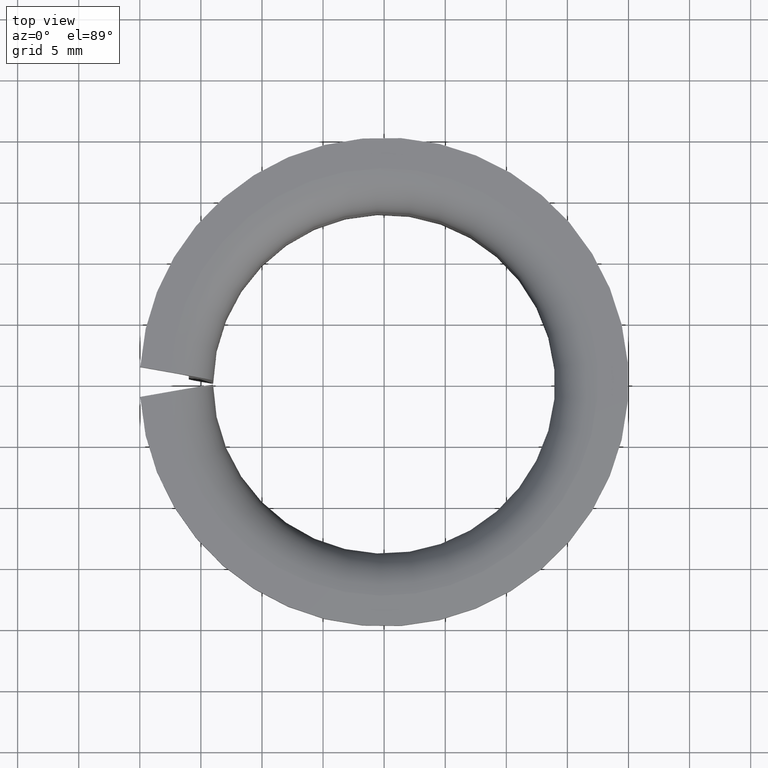
[diagram: clean part render]
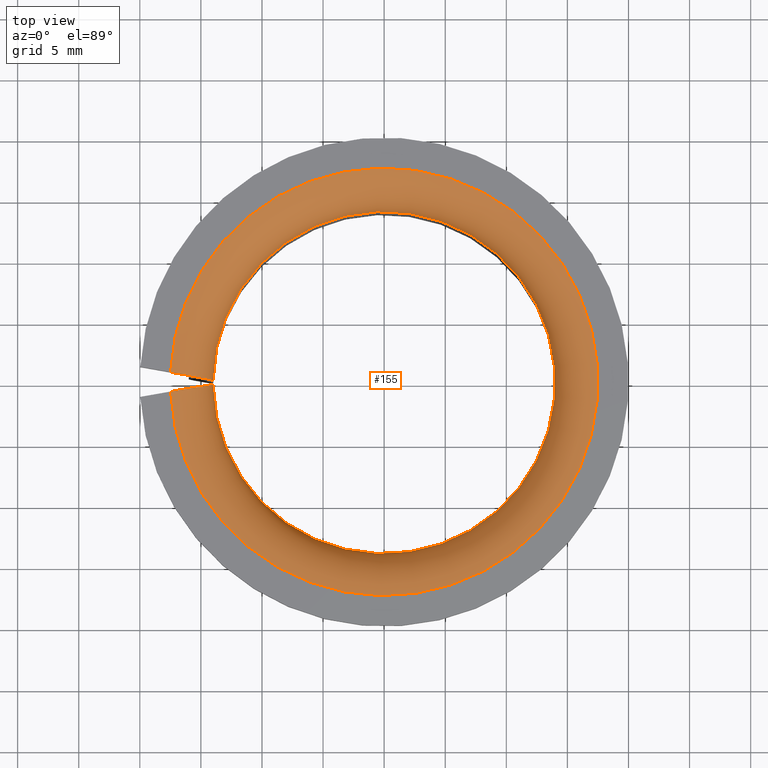
[diagram: same view with one face highlighted and labeled with its STEP entity id]
A machine part, top view. The second image highlights one B-rep face of the part: STEP entity #155.
In plain terms, the highlighted toroidal blend (fillet) surface has major radius 17.5 mm and minor (blend) radius 3.5 mm.
Its self-contained STEP definition (entity closure, byte-faithful):
#155=ADVANCED_FACE('',(#171),#172,.T.);
#171=FACE_OUTER_BOUND('',#196,.T.);
#172=TOROIDAL_SURFACE('',#197,0.0175,0.0035);
#196=EDGE_LOOP('',(#236,#237,#238,#239));
#197=AXIS2_PLACEMENT_3D('',#240,#241,#242);
#236=ORIENTED_EDGE('',*,*,#325,.T.);
#237=ORIENTED_EDGE('',*,*,#326,.T.);
#238=ORIENTED_EDGE('',*,*,#327,.F.);
#239=ORIENTED_EDGE('',*,*,#312,.F.);
#240=CARTESIAN_POINT('',(0.0,0.0,0.0165));
#241=DIRECTION('',(0.0,-6.12323399573677E-017,-1.0));
#242=DIRECTION('',(0.0,1.0,-6.12323399573677E-017));
#312=EDGE_CURVE('',#342,#343,#344,.T.);
#325=EDGE_CURVE('',#342,#367,#368,.T.);
#326=EDGE_CURVE('',#367,#369,#370,.T.);
#327=EDGE_CURVE('',#343,#369,#371,.T.);
#342=VERTEX_POINT('',#392);
#343=VERTEX_POINT('',#393);
#344=B_SPLINE_CURVE_WITH_KNOTS('',3,(#394,#395,#396,#397,#398,#399,#400,#401,#402,#403,#404,#405,#406,#407,#408,#409,#410,#411),.UNSPECIFIED.,.F.,.F.,(4,2,2,2,2,2,2,2,4),(1.97144253782621E-007,0.000687155971088123,0.00137411479792246,0.0020610736247568,0.00274803245159114,0.00343499127842548,0.00412195010525983,0.00480890893209417,0.00549586775892852),.UNSPECIFIED.);
#367=VERTEX_POINT('',#462);
#368=CIRCLE('',#463,0.014);
#369=VERTEX_POINT('',#464);
#370=B_SPLINE_CURVE_WITH_KNOTS('',3,(#465,#466,#467,#468,#469,#470,#471,#472,#473,#474,#475,#476,#477,#478,#479,#480,#481,#482),.UNSPECIFIED.,.F.,.F.,(4,2,2,2,2,2,2,2,4),(1.97144253782621E-007,0.000687155971088123,0.00137411479792246,0.0020610736247568,0.00274803245159114,0.00343499127842548,0.00412195010525983,0.00480890893209417,0.00549586775892852),.UNSPECIFIED.);
#371=CIRCLE('',#483,0.0175);
#392=CARTESIAN_POINT('',(0.0139988920152584,-0.000176131613104306,0.0165));
#393=CARTESIAN_POINT('',(0.0174821448752821,-0.000790323072956412,0.02));
#394=CARTESIAN_POINT('',(0.0139988920152584,-0.000176131613104308,0.0165));
#395=CARTESIAN_POINT('',(0.0139988920152584,-0.000176131613104308,0.0167323021229232));
#396=CARTESIAN_POINT('',(0.0140217423370338,-0.000180160741351178,0.0169606413292185));
#397=CARTESIAN_POINT('',(0.0141111917601118,-0.000195933088048641,0.017409732419077));
#398=CARTESIAN_POINT('',(0.0141789232572242,-0.000207875978433341,0.0176328632184782));
#399=CARTESIAN_POINT('',(0.0143551748077873,-0.000238953882189313,0.0180573672440297));
#400=CARTESIAN_POINT('',(0.0144629322688952,-0.000257954429955282,0.0182585752925512));
#401=CARTESIAN_POINT('',(0.0147172474946042,-0.000302797065852737,0.0186391639638387));
#402=CARTESIAN_POINT('',(0.0148648084549154,-0.000328816044454846,0.0188187890314946));
#403=CARTESIAN_POINT('',(0.0151865801197621,-0.000385553070594809,0.0191405654408067));
#404=CARTESIAN_POINT('',(0.0153620345842795,-0.000416490426574973,0.0192849476132461));
#405=CARTESIAN_POINT('',(0.0157427866059231,-0.000483627280950031,0.0195399002011343));
#406=CARTESIAN_POINT('',(0.0159441840191777,-0.000519139078751712,0.0196475604588357));
#407=CARTESIAN_POINT('',(0.0163615882208697,-0.000592738701371102,0.0198211212195205));
#408=CARTESIAN_POINT('',(0.0165802817788546,-0.000631300276150967,0.019888015713786));
#409=CARTESIAN_POINT('',(0.0170274946156106,-0.000710155965390212,0.0199775150904786));
#410=CARTESIAN_POINT('',(0.0172535720314199,-0.000750019513526241,0.02));
#411=CARTESIAN_POINT('',(0.0174821448752821,-0.000790323072956413,0.02));
#462=CARTESIAN_POINT('',(0.0139988920152584,0.000176131613104309,0.0165));
#463=AXIS2_PLACEMENT_3D('',#538,#539,#540);
#464=CARTESIAN_POINT('',(0.0174821448752821,0.000790323072956419,0.02));
#465=CARTESIAN_POINT('',(0.0139988920152584,0.000176131613104311,0.0165));
#466=CARTESIAN_POINT('',(0.0139988920152584,0.000176131613104311,0.0167323021229232));
#467=CARTESIAN_POINT('',(0.0140217423370338,0.000180160741351181,0.0169606413292185));
#468=CARTESIAN_POINT('',(0.0141111917601118,0.000195933088048644,0.017409732419077));
#469=CARTESIAN_POINT('',(0.0141789232572242,0.000207875978433343,0.0176328632184782));
#470=CARTESIAN_POINT('',(0.0143551748077873,0.000238953882189316,0.0180573672440297));
#471=CARTESIAN_POINT('',(0.0144629322688952,0.000257954429955285,0.0182585752925512));
#472=CARTESIAN_POINT('',(0.0147172474946042,0.00030279706585274,0.0186391639638387));
#473=CARTESIAN_POINT('',(0.0148648084549154,0.000328816044454848,0.0188187890314946));
#474=CARTESIAN_POINT('',(0.0151865801197621,0.000385553070594812,0.0191405654408067));
#475=CARTESIAN_POINT('',(0.0153620345842795,0.000416490426574977,0.0192849476132461));
#476=CARTESIAN_POINT('',(0.0157427866059231,0.000483627280950035,0.0195399002011343));
#477=CARTESIAN_POINT('',(0.0159441840191777,0.000519139078751716,0.0196475604588357));
#478=CARTESIAN_POINT('',(0.0163615882208697,0.000592738701371106,0.0198211212195205));
#479=CARTESIAN_POINT('',(0.0165802817788546,0.000631300276150971,0.019888015713786));
#480=CARTESIAN_POINT('',(0.0170274946156106,0.000710155965390215,0.0199775150904786));
#481=CARTESIAN_POINT('',(0.0172535720314199,0.000750019513526244,0.02));
#482=CARTESIAN_POINT('',(0.0174821448752821,0.000790323072956417,0.02));
#483=AXIS2_PLACEMENT_3D('',#541,#542,#543);
#538=CARTESIAN_POINT('',(0.0,0.0,0.0165));
#539=DIRECTION('',(0.0,-6.12323399573677E-017,-1.0));
#540=DIRECTION('',(0.0,1.0,-6.12323399573677E-017));
#541=CARTESIAN_POINT('',(0.0,0.0,0.02));
#542=DIRECTION('',(0.0,-6.12323399573677E-017,-1.0));
#543=DIRECTION('',(0.0,1.0,-6.12323399573677E-017));